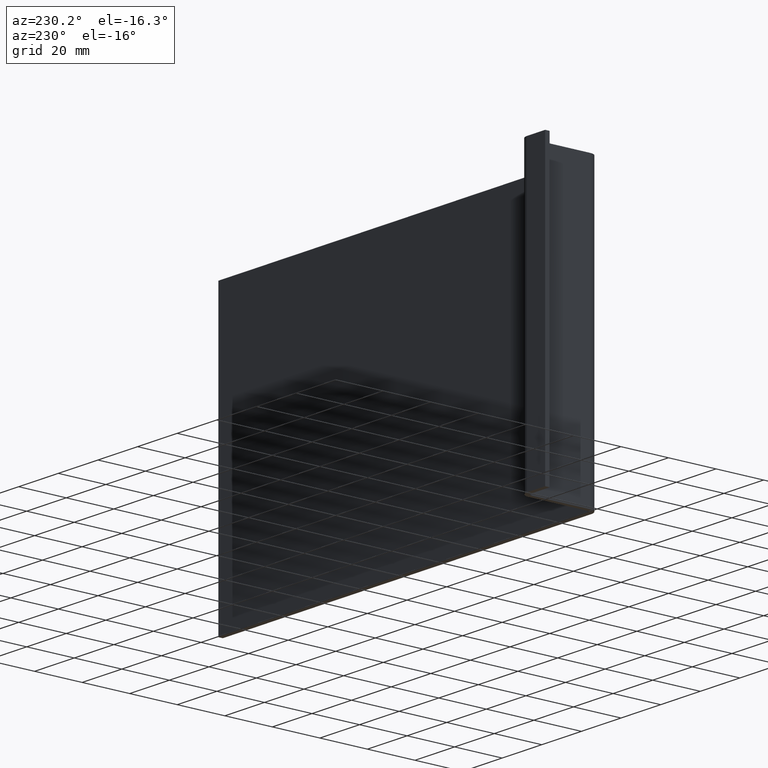
[diagram: clean part render]
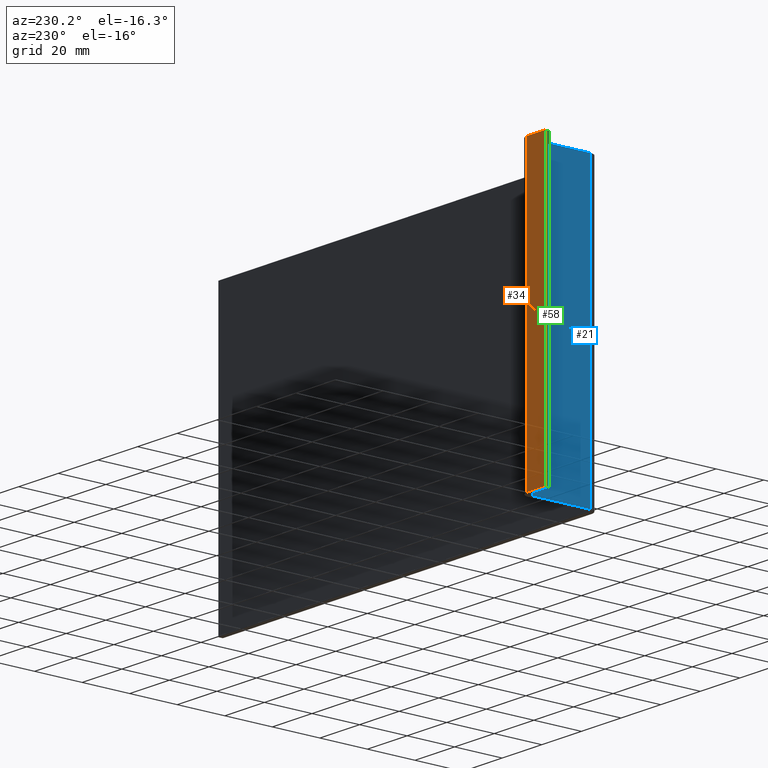
[diagram: same view with three faces highlighted in distinct colors, each labeled with its STEP entity id]
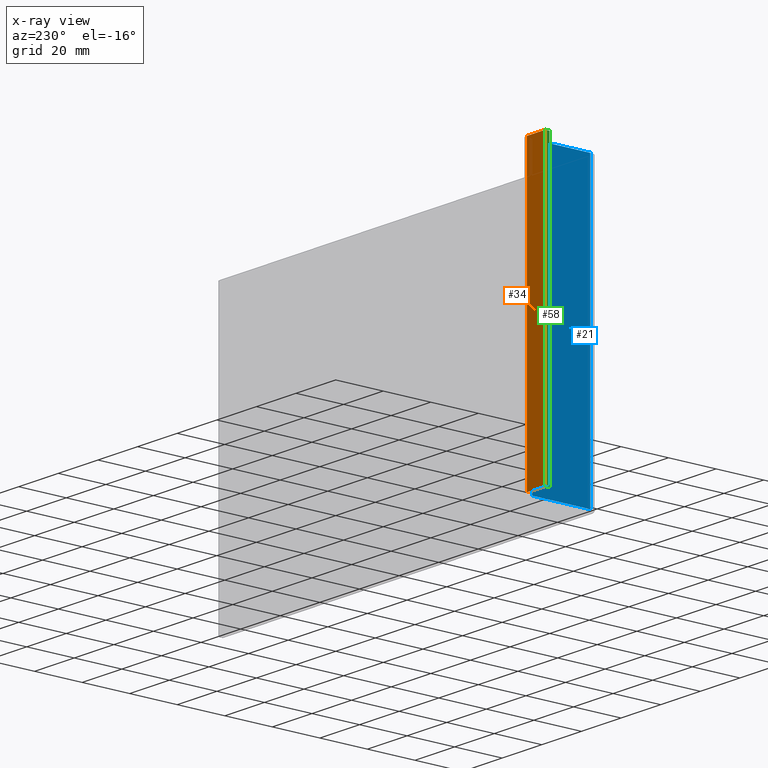
[diagram: x-ray of the same camera — body ghosted, the three highlighted faces saturated]
A machine part, auxiliary view with three faces highlighted in distinct colors.
The next image is the same camera in x-ray (body ghosted, the three faces saturated) — at least one of them is partly hidden behind the body in this view.
Their STEP definitions:

[orange] entity #34 — the highlighted planar face has unit normal (-0, -1, 0).
#34 = ADVANCED_FACE ( 'NONE', ( #330 ), #313, .F. ) ;
#46 = EDGE_CURVE ( 'NONE', #225, #204, #377, .T. ) ;
#56 = EDGE_CURVE ( 'NONE', #190, #204, #401, .T. ) ;
#57 = EDGE_CURVE ( 'NONE', #209, #190, #394, .T. ) ;
#60 = EDGE_CURVE ( 'NONE', #209, #225, #438, .T. ) ;
#76 = VECTOR ( 'NONE', #355, 1000.000000000000000 ) ;
#89 = AXIS2_PLACEMENT_3D ( 'NONE', #299, #300, #304 ) ;
#127 = VECTOR ( 'NONE', #395, 1000.000000000000000 ) ;
#129 = VECTOR ( 'NONE', #402, 1000.000000000000000 ) ;
#138 = VECTOR ( 'NONE', #426, 1000.000000000000000 ) ;
#190 = VERTEX_POINT ( 'NONE', #414 ) ;
#199 = ORIENTED_EDGE ( 'NONE', *, *, #60, .F. ) ;
#204 = VERTEX_POINT ( 'NONE', #472 ) ;
#209 = VERTEX_POINT ( 'NONE', #468 ) ;
#216 = ORIENTED_EDGE ( 'NONE', *, *, #57, .T. ) ;
#225 = VERTEX_POINT ( 'NONE', #462 ) ;
#229 = ORIENTED_EDGE ( 'NONE', *, *, #46, .F. ) ;
#240 = ORIENTED_EDGE ( 'NONE', *, *, #56, .T. ) ;
#286 = EDGE_LOOP ( 'NONE', ( #240, #229, #199, #216 ) ) ;
#299 = CARTESIAN_POINT ( 'NONE',  ( 0.0000000000000000000, 1.899999999999999900, 120.0000000000000000 ) ) ;
#300 = DIRECTION ( 'NONE',  ( -2.356961244533705400E-017, -1.000000000000000000, 0.0000000000000000000 ) ) ;
#304 = DIRECTION ( 'NONE',  ( 1.000000000000000000, -2.356961244533705400E-017, 0.0000000000000000000 ) ) ;
#313 = PLANE ( 'NONE',  #89 ) ;
#330 = FACE_OUTER_BOUND ( 'NONE', #286, .T. ) ;
#355 = DIRECTION ( 'NONE',  ( -0.0000000000000000000, -0.0000000000000000000, -1.000000000000000000 ) ) ;
#377 = LINE ( 'NONE', #379, #76 ) ;
#379 = CARTESIAN_POINT ( 'NONE',  ( 0.0000000000000000000, 1.899999999999999900, 120.0000000000000000 ) ) ;
#392 = CARTESIAN_POINT ( 'NONE',  ( 0.0000000000000000000, 1.899999999999999900, 120.0000000000000000 ) ) ;
#394 = LINE ( 'NONE', #425, #138 ) ;
#395 = DIRECTION ( 'NONE',  ( -1.000000000000000000, 2.356961244533705400E-017, -0.0000000000000000000 ) ) ;
#401 = LINE ( 'NONE', #421, #129 ) ;
#402 = DIRECTION ( 'NONE',  ( -1.000000000000000000, 2.356961244533705400E-017, -0.0000000000000000000 ) ) ;
#414 = CARTESIAN_POINT ( 'NONE',  ( 9.199999999999999300, 1.900000000000000400, 0.0000000000000000000 ) ) ;
#421 = CARTESIAN_POINT ( 'NONE',  ( 0.0000000000000000000, 1.899999999999999900, 0.0000000000000000000 ) ) ;
#425 = CARTESIAN_POINT ( 'NONE',  ( 9.199999999999999300, 1.900000000000000400, 120.0000000000000000 ) ) ;
#426 = DIRECTION ( 'NONE',  ( -0.0000000000000000000, -0.0000000000000000000, -1.000000000000000000 ) ) ;
#438 = LINE ( 'NONE', #392, #127 ) ;
#462 = CARTESIAN_POINT ( 'NONE',  ( 0.0000000000000000000, 1.899999999999999900, 120.0000000000000000 ) ) ;
#468 = CARTESIAN_POINT ( 'NONE',  ( 9.199999999999999300, 1.900000000000000400, 120.0000000000000000 ) ) ;
#472 = CARTESIAN_POINT ( 'NONE',  ( 0.0000000000000000000, 1.899999999999999900, 0.0000000000000000000 ) ) ;

[blue] entity #21 — the highlighted planar face has unit normal (1, 0, -0).
#21 = ADVANCED_FACE ( 'NONE', ( #248 ), #253, .F. ) ;
#24 = EDGE_CURVE ( 'NONE', #219, #201, #325, .T. ) ;
#28 = EDGE_CURVE ( 'NONE', #232, #219, #321, .T. ) ;
#36 = EDGE_CURVE ( 'NONE', #189, #201, #356, .T. ) ;
#61 = EDGE_CURVE ( 'NONE', #232, #189, #398, .T. ) ;
#65 = VECTOR ( 'NONE', #310, 1000.000000000000000 ) ;
#86 = VECTOR ( 'NONE', #341, 1000.000000000000000 ) ;
#106 = VECTOR ( 'NONE', #366, 1000.000000000000000 ) ;
#112 = AXIS2_PLACEMENT_3D ( 'NONE', #292, #254, #293 ) ;
#125 = VECTOR ( 'NONE', #436, 1000.000000000000000 ) ;
#146 = ORIENTED_EDGE ( 'NONE', *, *, #61, .F. ) ;
#157 = ORIENTED_EDGE ( 'NONE', *, *, #36, .F. ) ;
#166 = ORIENTED_EDGE ( 'NONE', *, *, #24, .T. ) ;
#185 = ORIENTED_EDGE ( 'NONE', *, *, #28, .T. ) ;
#189 = VERTEX_POINT ( 'NONE', #416 ) ;
#201 = VERTEX_POINT ( 'NONE', #419 ) ;
#219 = VERTEX_POINT ( 'NONE', #442 ) ;
#232 = VERTEX_POINT ( 'NONE', #489 ) ;
#248 = FACE_OUTER_BOUND ( 'NONE', #271, .T. ) ;
#253 = PLANE ( 'NONE',  #112 ) ;
#254 = DIRECTION ( 'NONE',  ( 1.000000000000000000, 1.421904488505580900E-016, -0.0000000000000000000 ) ) ;
#271 = EDGE_LOOP ( 'NONE', ( #166, #157, #146, #185 ) ) ;
#292 = CARTESIAN_POINT ( 'NONE',  ( 11.09999999999999800, -1.899999999999999700, 120.0000000000000000 ) ) ;
#293 = DIRECTION ( 'NONE',  ( -1.421904488505580900E-016, 1.000000000000000000, 0.0000000000000000000 ) ) ;
#310 = DIRECTION ( 'NONE',  ( 1.421904488505580900E-016, -1.000000000000000000, 0.0000000000000000000 ) ) ;
#320 = CARTESIAN_POINT ( 'NONE',  ( 11.09999999999999800, -1.899999999999999700, 120.0000000000000000 ) ) ;
#321 = LINE ( 'NONE', #320, #86 ) ;
#325 = LINE ( 'NONE', #342, #65 ) ;
#341 = DIRECTION ( 'NONE',  ( -0.0000000000000000000, -0.0000000000000000000, -1.000000000000000000 ) ) ;
#342 = CARTESIAN_POINT ( 'NONE',  ( 11.09999999999999800, -1.899999999999999700, 0.0000000000000000000 ) ) ;
#356 = LINE ( 'NONE', #369, #106 ) ;
#366 = DIRECTION ( 'NONE',  ( -0.0000000000000000000, -0.0000000000000000000, -1.000000000000000000 ) ) ;
#369 = CARTESIAN_POINT ( 'NONE',  ( 11.10000000000000100, -26.29999999999997600, 120.0000000000000000 ) ) ;
#398 = LINE ( 'NONE', #406, #125 ) ;
#406 = CARTESIAN_POINT ( 'NONE',  ( 11.09999999999999800, -1.899999999999999700, 120.0000000000000000 ) ) ;
#416 = CARTESIAN_POINT ( 'NONE',  ( 11.10000000000000100, -26.29999999999997600, 120.0000000000000000 ) ) ;
#419 = CARTESIAN_POINT ( 'NONE',  ( 11.10000000000000100, -26.29999999999997600, 0.0000000000000000000 ) ) ;
#436 = DIRECTION ( 'NONE',  ( 1.421904488505580900E-016, -1.000000000000000000, 0.0000000000000000000 ) ) ;
#442 = CARTESIAN_POINT ( 'NONE',  ( 11.09999999999999800, -1.899999999999999700, 0.0000000000000000000 ) ) ;
#489 = CARTESIAN_POINT ( 'NONE',  ( 11.09999999999999800, -1.899999999999999700, 120.0000000000000000 ) ) ;

[green] entity #58 — the highlighted planar face has unit normal (1, 0, -0).
#18 = EDGE_CURVE ( 'NONE', #204, #217, #280, .T. ) ;
#42 = EDGE_CURVE ( 'NONE', #225, #220, #371, .T. ) ;
#45 = EDGE_CURVE ( 'NONE', #220, #217, #368, .T. ) ;
#46 = EDGE_CURVE ( 'NONE', #225, #204, #377, .T. ) ;
#58 = ADVANCED_FACE ( 'NONE', ( #427 ), #431, .F. ) ;
#76 = VECTOR ( 'NONE', #355, 1000.000000000000000 ) ;
#107 = VECTOR ( 'NONE', #381, 1000.000000000000000 ) ;
#108 = VECTOR ( 'NONE', #358, 1000.000000000000000 ) ;
#111 = VECTOR ( 'NONE', #263, 1000.000000000000000 ) ;
#140 = AXIS2_PLACEMENT_3D ( 'NONE', #403, #417, #432 ) ;
#169 = ORIENTED_EDGE ( 'NONE', *, *, #42, .F. ) ;
#170 = ORIENTED_EDGE ( 'NONE', *, *, #46, .T. ) ;
#171 = ORIENTED_EDGE ( 'NONE', *, *, #45, .F. ) ;
#182 = ORIENTED_EDGE ( 'NONE', *, *, #18, .T. ) ;
#204 = VERTEX_POINT ( 'NONE', #472 ) ;
#217 = VERTEX_POINT ( 'NONE', #465 ) ;
#220 = VERTEX_POINT ( 'NONE', #470 ) ;
#225 = VERTEX_POINT ( 'NONE', #462 ) ;
#252 = CARTESIAN_POINT ( 'NONE',  ( 0.0000000000000000000, 1.899999999999999900, 0.0000000000000000000 ) ) ;
#259 = EDGE_LOOP ( 'NONE', ( #182, #171, #169, #170 ) ) ;
#263 = DIRECTION ( 'NONE',  ( 0.0000000000000000000, -1.000000000000000000, 0.0000000000000000000 ) ) ;
#280 = LINE ( 'NONE', #252, #111 ) ;
#355 = DIRECTION ( 'NONE',  ( -0.0000000000000000000, -0.0000000000000000000, -1.000000000000000000 ) ) ;
#358 = DIRECTION ( 'NONE',  ( -0.0000000000000000000, -0.0000000000000000000, -1.000000000000000000 ) ) ;
#368 = LINE ( 'NONE', #384, #108 ) ;
#371 = LINE ( 'NONE', #380, #107 ) ;
#377 = LINE ( 'NONE', #379, #76 ) ;
#379 = CARTESIAN_POINT ( 'NONE',  ( 0.0000000000000000000, 1.899999999999999900, 120.0000000000000000 ) ) ;
#380 = CARTESIAN_POINT ( 'NONE',  ( 0.0000000000000000000, 1.899999999999999900, 120.0000000000000000 ) ) ;
#381 = DIRECTION ( 'NONE',  ( 0.0000000000000000000, -1.000000000000000000, 0.0000000000000000000 ) ) ;
#384 = CARTESIAN_POINT ( 'NONE',  ( 0.0000000000000000000, 0.0000000000000000000, 120.0000000000000000 ) ) ;
#403 = CARTESIAN_POINT ( 'NONE',  ( 0.0000000000000000000, 1.899999999999999900, 120.0000000000000000 ) ) ;
#417 = DIRECTION ( 'NONE',  ( 1.000000000000000000, 0.0000000000000000000, -0.0000000000000000000 ) ) ;
#427 = FACE_OUTER_BOUND ( 'NONE', #259, .T. ) ;
#431 = PLANE ( 'NONE',  #140 ) ;
#432 = DIRECTION ( 'NONE',  ( -0.0000000000000000000, 0.0000000000000000000, -1.000000000000000000 ) ) ;
#462 = CARTESIAN_POINT ( 'NONE',  ( 0.0000000000000000000, 1.899999999999999900, 120.0000000000000000 ) ) ;
#465 = CARTESIAN_POINT ( 'NONE',  ( 0.0000000000000000000, 0.0000000000000000000, 0.0000000000000000000 ) ) ;
#470 = CARTESIAN_POINT ( 'NONE',  ( 0.0000000000000000000, 0.0000000000000000000, 120.0000000000000000 ) ) ;
#472 = CARTESIAN_POINT ( 'NONE',  ( 0.0000000000000000000, 1.899999999999999900, 0.0000000000000000000 ) ) ;